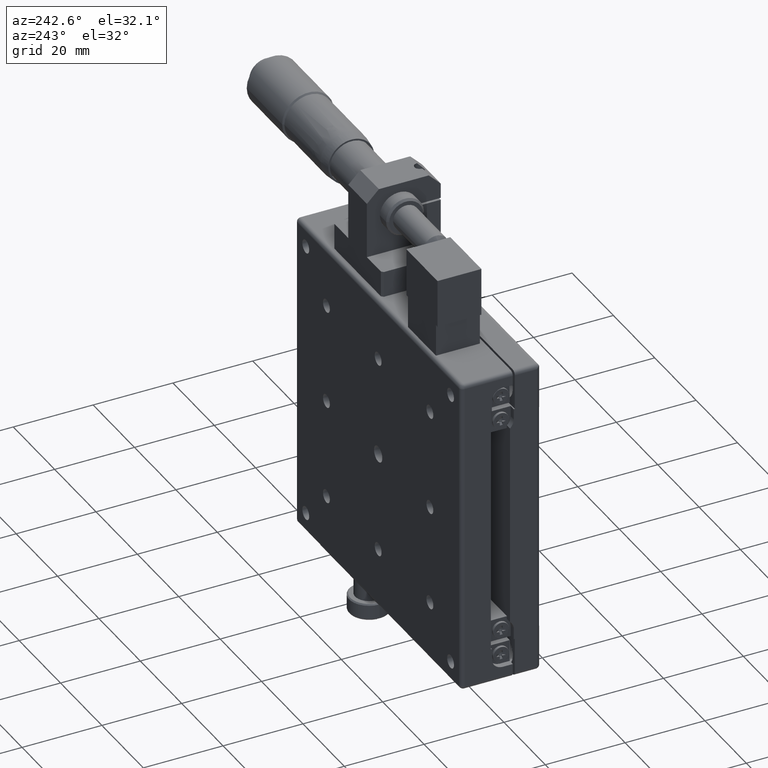
[diagram: clean part render]
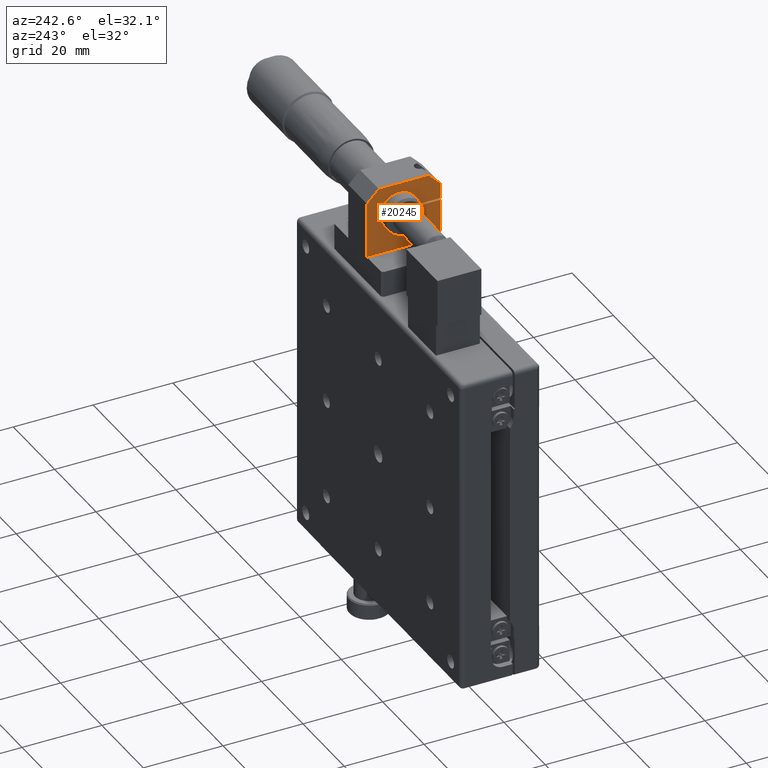
[diagram: same view with one face highlighted and labeled with its STEP entity id]
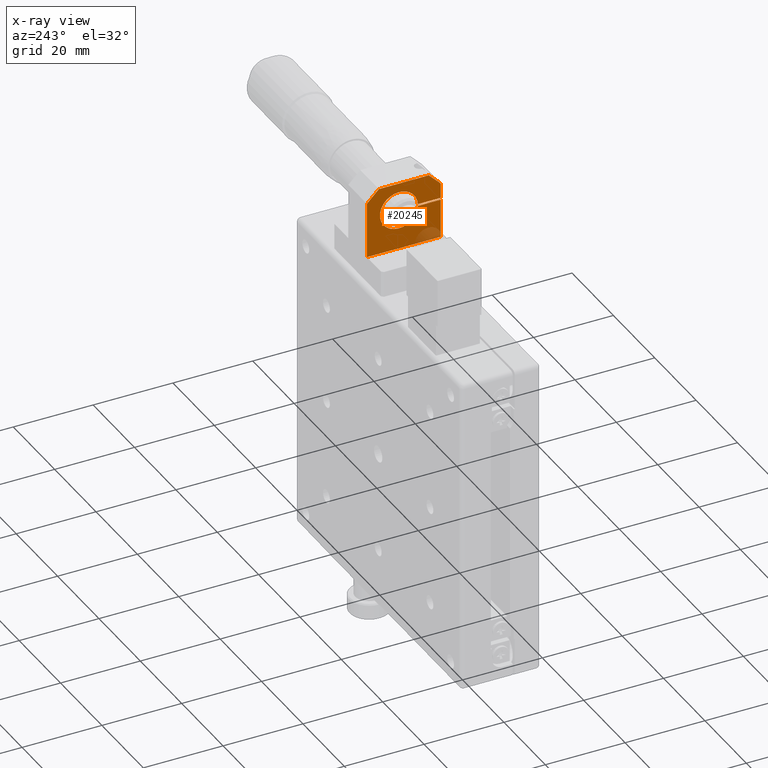
[diagram: x-ray of the same camera — body ghosted, the highlighted face saturated]
A machine part, auxiliary view. The second image highlights one B-rep face of the part: STEP entity #20245.
The next image is the same camera in x-ray: the body ghosted, the highlighted face saturated — about 7% of this face is hidden behind the body in this view.
In plain terms, the highlighted planar face has unit normal (1, 0, -0).
Its self-contained STEP definition (entity closure, byte-faithful):
#306 = ORIENTED_EDGE ( 'NONE', *, *, #22895, .T. ) ;
#354 = CARTESIAN_POINT ( 'NONE',  ( 4.151448767379345206, 11.44470148381819818, 61.00000000000000000 ) ) ;
#401 = VERTEX_POINT ( 'NONE', #27929 ) ;
#941 = VERTEX_POINT ( 'NONE', #4806 ) ;
#1457 = DIRECTION ( 'NONE',  ( 1.000000000000000000, 0.000000000000000000, -1.826024711554529969E-16 ) ) ;
#1976 = CARTESIAN_POINT ( 'NONE',  ( 4.151448767379345206, -7.055298516181800039, 61.00000000000000000 ) ) ;
#2106 = DIRECTION ( 'NONE',  ( 1.020425574104003999E-16, 0.000000000000000000, 1.000000000000000000 ) ) ;
#2305 = LINE ( 'NONE', #26181, #29945 ) ;
#2450 = EDGE_CURVE ( 'NONE', #401, #30031, #16501, .T. ) ;
#3986 = EDGE_CURVE ( 'NONE', #24949, #11044, #17007, .T. ) ;
#4123 = AXIS2_PLACEMENT_3D ( 'NONE', #23100, #1457, #6344 ) ;
#4262 = DIRECTION ( 'NONE',  ( 1.000000000000000000, 0.000000000000000000, -1.826024711554529969E-16 ) ) ;
#4477 = DIRECTION ( 'NONE',  ( 0.000000000000000000, -1.000000000000000000, 0.000000000000000000 ) ) ;
#4806 = CARTESIAN_POINT ( 'NONE',  ( 4.151448767379345206, -7.055298516181800039, 56.75000000000000000 ) ) ;
#4933 = DIRECTION ( 'NONE',  ( 1.000000000000000000, 0.000000000000000000, -1.020425574104003999E-16 ) ) ;
#5247 = CARTESIAN_POINT ( 'NONE',  ( 4.151448767379345206, 11.44470148381819818, 47.00000000000000000 ) ) ;
#5563 = EDGE_CURVE ( 'NONE', #12511, #30031, #20704, .T. ) ;
#5976 = DIRECTION ( 'NONE',  ( -1.040888577748611945E-32, -1.000000000000000000, -1.020053401408109994E-16 ) ) ;
#5989 = ORIENTED_EDGE ( 'NONE', *, *, #11092, .T. ) ;
#6344 = DIRECTION ( 'NONE',  ( -1.826024711554534899E-16, 0.000000000000000000, -1.000000000000000000 ) ) ;
#6898 = VECTOR ( 'NONE', #21194, 1000.000000000000000 ) ;
#6933 = EDGE_CURVE ( 'NONE', #941, #24949, #16826, .T. ) ;
#7010 = ORIENTED_EDGE ( 'NONE', *, *, #2450, .F. ) ;
#7017 = LINE ( 'NONE', #5247, #12851 ) ;
#7837 = VECTOR ( 'NONE', #5976, 1000.000000000000000 ) ;
#7980 = EDGE_CURVE ( 'NONE', #401, #15503, #15229, .T. ) ;
#9404 = ORIENTED_EDGE ( 'NONE', *, *, #3986, .T. ) ;
#9540 = FACE_OUTER_BOUND ( 'NONE', #20456, .T. ) ;
#9586 = CARTESIAN_POINT ( 'NONE',  ( 4.151448767379345206, -7.055298516181800039, 47.00000000000000000 ) ) ;
#9620 = VERTEX_POINT ( 'NONE', #15315 ) ;
#9732 = LINE ( 'NONE', #9586, #17463 ) ;
#10012 = EDGE_CURVE ( 'NONE', #17136, #15503, #7017, .T. ) ;
#10128 = CARTESIAN_POINT ( 'NONE',  ( 4.151448767379345206, -1.298715006434371988, 57.25000000000000000 ) ) ;
#10153 = CARTESIAN_POINT ( 'NONE',  ( 4.151448767379345206, -7.055298516181800039, 57.25000000000000000 ) ) ;
#10469 = DIRECTION ( 'NONE',  ( -1.826024711554534899E-16, 0.000000000000000000, -1.000000000000000000 ) ) ;
#10684 = CARTESIAN_POINT ( 'NONE',  ( 4.151448767379345206, -1.298715006434371988, 56.75000000000000000 ) ) ;
#11005 = EDGE_CURVE ( 'NONE', #24463, #18388, #20975, .T. ) ;
#11044 = VERTEX_POINT ( 'NONE', #25252 ) ;
#11079 = LINE ( 'NONE', #11544, #6898 ) ;
#11092 = EDGE_CURVE ( 'NONE', #18388, #12511, #9732, .T. ) ;
#11293 = AXIS2_PLACEMENT_3D ( 'NONE', #14743, #4933, #19157 ) ;
#11426 = ORIENTED_EDGE ( 'NONE', *, *, #6933, .T. ) ;
#11544 = CARTESIAN_POINT ( 'NONE',  ( 4.151448767379345206, 11.44470148381819818, 47.00000000000000000 ) ) ;
#11814 = CARTESIAN_POINT ( 'NONE',  ( 4.151448767379345206, 11.44470148381819818, 61.00000000000000000 ) ) ;
#11946 = DIRECTION ( 'NONE',  ( 1.020425574104003999E-16, 0.000000000000000000, 1.000000000000000000 ) ) ;
#11995 = ORIENTED_EDGE ( 'NONE', *, *, #10012, .F. ) ;
#12511 = VERTEX_POINT ( 'NONE', #1976 ) ;
#12851 = VECTOR ( 'NONE', #2106, 1000.000000000000000 ) ;
#14044 = VECTOR ( 'NONE', #16984, 1000.000000000000000 ) ;
#14743 = CARTESIAN_POINT ( 'NONE',  ( 4.151448767379345206, 11.44470148381819818, 47.00000000000000000 ) ) ;
#15229 = LINE ( 'NONE', #354, #23167 ) ;
#15315 = CARTESIAN_POINT ( 'NONE',  ( 4.151448767379345206, 3.444701483818199961, 61.75000000000000000 ) ) ;
#15503 = VERTEX_POINT ( 'NONE', #11814 ) ;
#16285 = CARTESIAN_POINT ( 'NONE',  ( 4.151448767379345206, 3.444701483818199961, 57.00000000000000000 ) ) ;
#16346 = VECTOR ( 'NONE', #4477, 1000.000000000000000 ) ;
#16418 = DIRECTION ( 'NONE',  ( 7.215498431451188511E-17, 0.7071067811865460184, 0.7071067811865489050 ) ) ;
#16501 = LINE ( 'NONE', #21090, #16346 ) ;
#16781 = VERTEX_POINT ( 'NONE', #29905 ) ;
#16826 = LINE ( 'NONE', #19810, #14044 ) ;
#16984 = DIRECTION ( 'NONE',  ( 1.040888577748611945E-32, 1.000000000000000000, 1.020053401408109994E-16 ) ) ;
#17007 = CIRCLE ( 'NONE', #19525, 4.749999999999997335 ) ;
#17063 = CIRCLE ( 'NONE', #25145, 4.749999999999997335 ) ;
#17136 = VERTEX_POINT ( 'NONE', #26119 ) ;
#17463 = VECTOR ( 'NONE', #11946, 1000.000000000000000 ) ;
#18000 = ORIENTED_EDGE ( 'NONE', *, *, #18536, .T. ) ;
#18388 = VERTEX_POINT ( 'NONE', #10153 ) ;
#18498 = DIRECTION ( 'NONE',  ( -1.826024711554534899E-16, 0.000000000000000000, -1.000000000000000000 ) ) ;
#18536 = EDGE_CURVE ( 'NONE', #11044, #9620, #28334, .T. ) ;
#18603 = DIRECTION ( 'NONE',  ( 1.020425574104003999E-16, 0.000000000000000000, 1.000000000000000000 ) ) ;
#18673 = ORIENTED_EDGE ( 'NONE', *, *, #11005, .T. ) ;
#19157 = DIRECTION ( 'NONE',  ( -1.020425574104003999E-16, 0.000000000000000000, -1.000000000000000000 ) ) ;
#19411 = ORIENTED_EDGE ( 'NONE', *, *, #7980, .T. ) ;
#19473 = ORIENTED_EDGE ( 'NONE', *, *, #25813, .T. ) ;
#19525 = AXIS2_PLACEMENT_3D ( 'NONE', #19772, #20098, #10469 ) ;
#19772 = CARTESIAN_POINT ( 'NONE',  ( 4.151448767379345206, 3.444701483818199961, 57.00000000000000000 ) ) ;
#19810 = CARTESIAN_POINT ( 'NONE',  ( 4.151448767379345206, 11.44470148381819818, 56.75000000000000000 ) ) ;
#20098 = DIRECTION ( 'NONE',  ( 1.000000000000000000, 0.000000000000000000, -1.826024711554529969E-16 ) ) ;
#20245 = ADVANCED_FACE ( 'NONE', ( #9540 ), #29099, .F. ) ;
#20456 = EDGE_LOOP ( 'NONE', ( #9404, #18000, #19473, #18673, #5989, #24711, #7010, #19411, #11995, #306, #28914, #11426 ) ) ;
#20704 = LINE ( 'NONE', #30299, #29175 ) ;
#20975 = LINE ( 'NONE', #30127, #7837 ) ;
#21090 = CARTESIAN_POINT ( 'NONE',  ( 4.151448767379345206, 11.44470148381819818, 64.00000000000000000 ) ) ;
#21194 = DIRECTION ( 'NONE',  ( 0.000000000000000000, -1.000000000000000000, 0.000000000000000000 ) ) ;
#22895 = EDGE_CURVE ( 'NONE', #17136, #16781, #11079, .T. ) ;
#23100 = CARTESIAN_POINT ( 'NONE',  ( 4.151448767379345206, 3.444701483818199961, 57.00000000000000000 ) ) ;
#23167 = VECTOR ( 'NONE', #24857, 1000.000000000000114 ) ;
#24463 = VERTEX_POINT ( 'NONE', #10128 ) ;
#24711 = ORIENTED_EDGE ( 'NONE', *, *, #5563, .T. ) ;
#24857 = DIRECTION ( 'NONE',  ( -7.215498431451157696E-17, 0.7071067811865489050, -0.7071067811865460184 ) ) ;
#24949 = VERTEX_POINT ( 'NONE', #10684 ) ;
#25145 = AXIS2_PLACEMENT_3D ( 'NONE', #16285, #4262, #18498 ) ;
#25252 = CARTESIAN_POINT ( 'NONE',  ( 4.151448767379345206, 3.444701483818199961, 52.25000000000000000 ) ) ;
#25516 = CARTESIAN_POINT ( 'NONE',  ( 4.151448767379345206, -4.055298516181800039, 64.00000000000000000 ) ) ;
#25813 = EDGE_CURVE ( 'NONE', #9620, #24463, #17063, .T. ) ;
#26119 = CARTESIAN_POINT ( 'NONE',  ( 4.151448767379345206, 11.44470148381819818, 47.00000000000000000 ) ) ;
#26181 = CARTESIAN_POINT ( 'NONE',  ( 4.151448767379345206, -7.055298516181800039, 47.00000000000000000 ) ) ;
#27481 = EDGE_CURVE ( 'NONE', #16781, #941, #2305, .T. ) ;
#27929 = CARTESIAN_POINT ( 'NONE',  ( 4.151448767379345206, 8.444701483818191079, 64.00000000000000000 ) ) ;
#28334 = CIRCLE ( 'NONE', #4123, 4.749999999999997335 ) ;
#28914 = ORIENTED_EDGE ( 'NONE', *, *, #27481, .T. ) ;
#29099 = PLANE ( 'NONE',  #11293 ) ;
#29175 = VECTOR ( 'NONE', #16418, 1000.000000000000114 ) ;
#29905 = CARTESIAN_POINT ( 'NONE',  ( 4.151448767379345206, -7.055298516181800039, 47.00000000000000000 ) ) ;
#29945 = VECTOR ( 'NONE', #18603, 1000.000000000000000 ) ;
#30031 = VERTEX_POINT ( 'NONE', #25516 ) ;
#30127 = CARTESIAN_POINT ( 'NONE',  ( 4.151448767379345206, 11.44470148381819818, 57.25000000000000000 ) ) ;
#30299 = CARTESIAN_POINT ( 'NONE',  ( 4.151448767379345206, -4.055298516181805368, 64.00000000000000000 ) ) ;